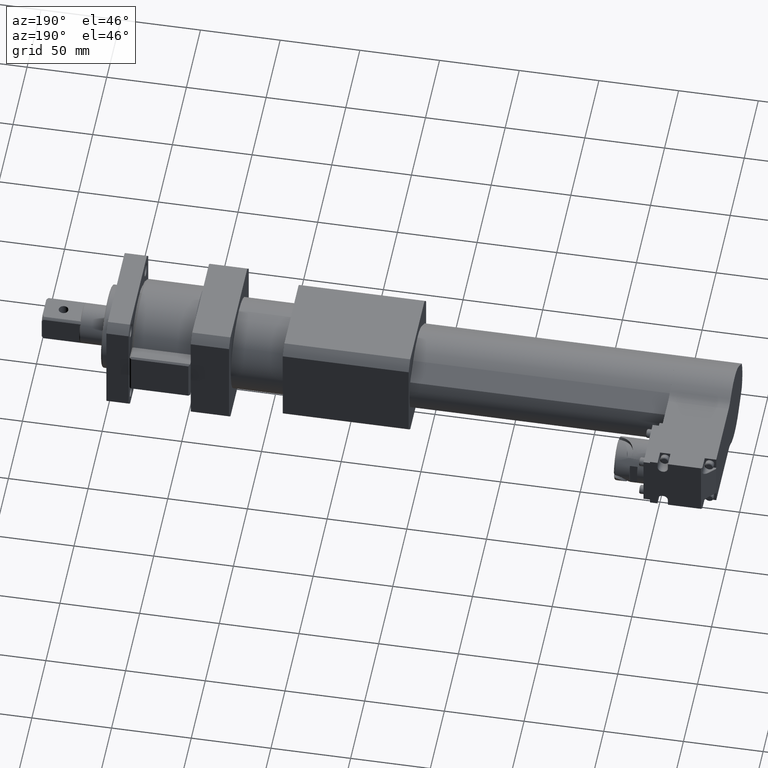
[diagram: clean part render]
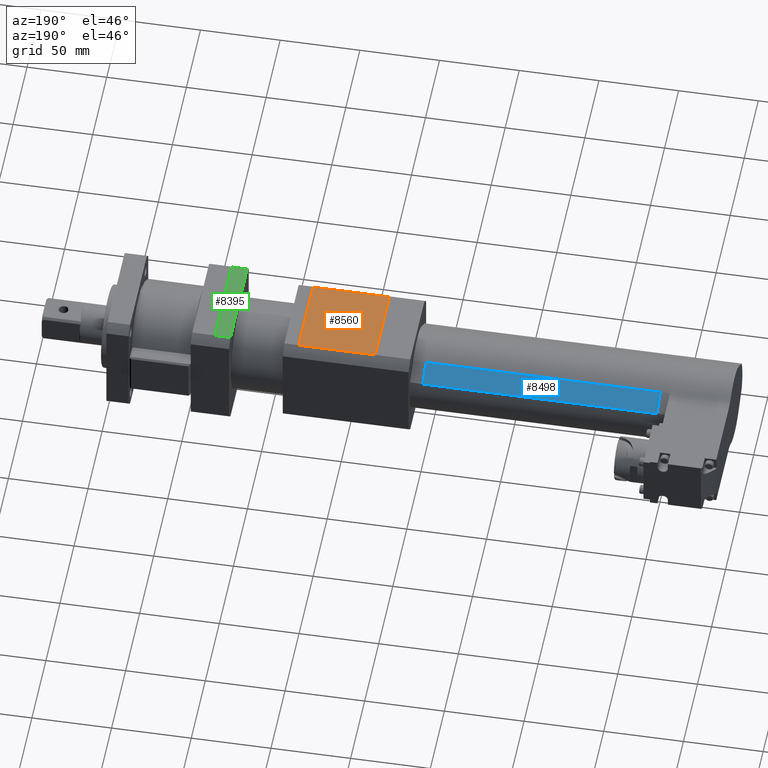
[diagram: same view with three faces highlighted in distinct colors, each labeled with its STEP entity id]
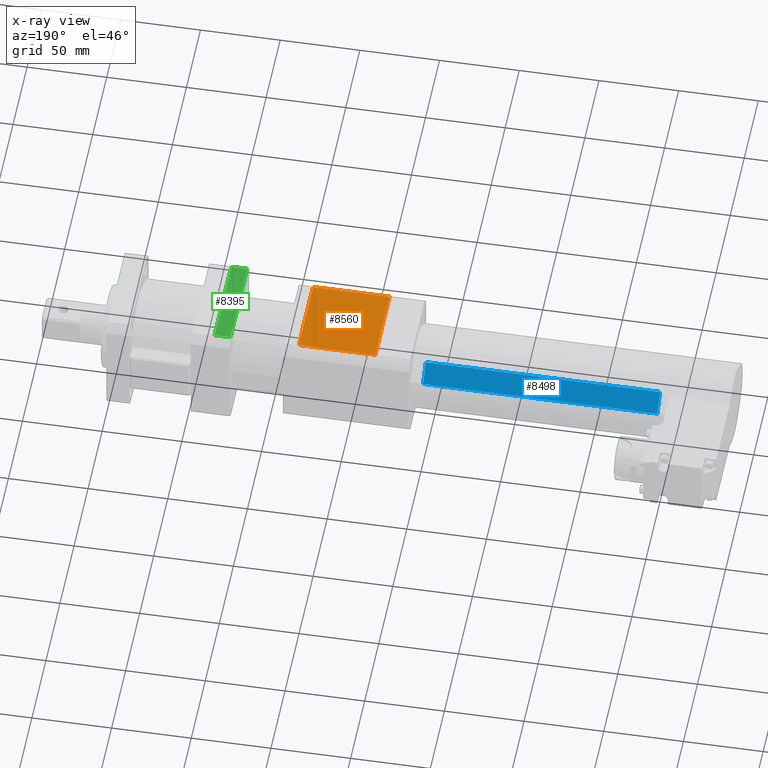
[diagram: x-ray of the same camera — body ghosted, the three highlighted faces saturated]
A machine part, auxiliary view with three faces highlighted in distinct colors.
The next image is the same camera in x-ray (body ghosted, the three faces saturated) — at least one of them is partly hidden behind the body in this view.
Their STEP definitions:

[orange] entity #8560 — the highlighted planar face has unit normal (0, -0, -1).
#1023 = LINE ( 'NONE', #5365, #2419 ) ;
#1092 = DIRECTION ( 'NONE',  ( 1.000000000000000000, -0.0000000000000000000, -0.0000000000000000000 ) ) ;
#1235 = VERTEX_POINT ( 'NONE', #8900 ) ;
#1376 = CARTESIAN_POINT ( 'NONE',  ( -119.0000000000000000, -25.27844931952907000, 31.00000000000000400 ) ) ;
#1604 = VECTOR ( 'NONE', #7276, 1000.000000000000000 ) ;
#1847 = DIRECTION ( 'NONE',  ( 0.0000000000000000000, 1.000000000000000000, -1.372492002218373300E-016 ) ) ;
#1850 = VERTEX_POINT ( 'NONE', #1376 ) ;
#2088 = EDGE_CURVE ( 'NONE', #7999, #6685, #1023, .T. ) ;
#2383 = CARTESIAN_POINT ( 'NONE',  ( -166.9999999999999700, -25.27844931952907000, 31.00000000000000400 ) ) ;
#2419 = VECTOR ( 'NONE', #5110, 1000.000000000000000 ) ;
#2999 = CARTESIAN_POINT ( 'NONE',  ( -166.9999999999999700, 25.27844931952908100, 30.99999999999999600 ) ) ;
#3671 = LINE ( 'NONE', #8167, #7190 ) ;
#3893 = CARTESIAN_POINT ( 'NONE',  ( -166.9999999999999700, -25.27844931952907000, 31.00000000000000400 ) ) ;
#3958 = DIRECTION ( 'NONE',  ( 0.0000000000000000000, 1.000000000000000000, -1.372492002218373300E-016 ) ) ;
#4108 = LINE ( 'NONE', #5944, #6206 ) ;
#4498 = ORIENTED_EDGE ( 'NONE', *, *, #8910, .T. ) ;
#4776 = CARTESIAN_POINT ( 'NONE',  ( -166.9999999999999700, -25.27844931952907000, 31.00000000000000400 ) ) ;
#5110 = DIRECTION ( 'NONE',  ( 0.0000000000000000000, 1.000000000000000000, -1.372492002218373300E-016 ) ) ;
#5262 = EDGE_CURVE ( 'NONE', #6685, #1235, #4108, .T. ) ;
#5365 = CARTESIAN_POINT ( 'NONE',  ( -166.9999999999999700, -25.27844931952907000, 31.00000000000000400 ) ) ;
#5944 = CARTESIAN_POINT ( 'NONE',  ( -166.9999999999999700, 25.27844931952908100, 30.99999999999999600 ) ) ;
#6033 = DIRECTION ( 'NONE',  ( 0.0000000000000000000, -1.372492002218373300E-016, -1.000000000000000000 ) ) ;
#6206 = VECTOR ( 'NONE', #1092, 1000.000000000000000 ) ;
#6662 = EDGE_LOOP ( 'NONE', ( #6938, #8895, #8450, #4498 ) ) ;
#6685 = VERTEX_POINT ( 'NONE', #2999 ) ;
#6700 = PLANE ( 'NONE',  #8973 ) ;
#6938 = ORIENTED_EDGE ( 'NONE', *, *, #6981, .T. ) ;
#6981 = EDGE_CURVE ( 'NONE', #1850, #1235, #3671, .T. ) ;
#7169 = LINE ( 'NONE', #2383, #1604 ) ;
#7190 = VECTOR ( 'NONE', #3958, 1000.000000000000000 ) ;
#7276 = DIRECTION ( 'NONE',  ( 1.000000000000000000, -0.0000000000000000000, -0.0000000000000000000 ) ) ;
#7999 = VERTEX_POINT ( 'NONE', #4776 ) ;
#8167 = CARTESIAN_POINT ( 'NONE',  ( -119.0000000000000000, -25.27844931952907000, 31.00000000000000400 ) ) ;
#8450 = ORIENTED_EDGE ( 'NONE', *, *, #2088, .F. ) ;
#8560 = ADVANCED_FACE ( 'NONE', ( #8712 ), #6700, .F. ) ;
#8712 = FACE_OUTER_BOUND ( 'NONE', #6662, .T. ) ;
#8895 = ORIENTED_EDGE ( 'NONE', *, *, #5262, .F. ) ;
#8900 = CARTESIAN_POINT ( 'NONE',  ( -119.0000000000000000, 25.27844931952908100, 30.99999999999999600 ) ) ;
#8910 = EDGE_CURVE ( 'NONE', #7999, #1850, #7169, .T. ) ;
#8973 = AXIS2_PLACEMENT_3D ( 'NONE', #3893, #6033, #1847 ) ;

[blue] entity #8498 — the highlighted planar face has unit normal (0, -0.6157, -0.788).
#2 = DIRECTION ( 'NONE',  ( 1.000000000000000000, -0.0000000000000000000, -0.0000000000000000000 ) ) ;
#692 = VECTOR ( 'NONE', #6919, 1000.000000000000000 ) ;
#912 = VERTEX_POINT ( 'NONE', #4414 ) ;
#991 = LINE ( 'NONE', #4379, #2591 ) ;
#1475 = VERTEX_POINT ( 'NONE', #5477 ) ;
#1716 = FACE_OUTER_BOUND ( 'NONE', #2441, .T. ) ;
#1811 = EDGE_CURVE ( 'NONE', #912, #4842, #2518, .T. ) ;
#1843 = LINE ( 'NONE', #6717, #5341 ) ;
#2441 = EDGE_LOOP ( 'NONE', ( #3048, #8953, #8326, #6641 ) ) ;
#2518 = LINE ( 'NONE', #3157, #692 ) ;
#2563 = VECTOR ( 'NONE', #2, 1000.000000000000000 ) ;
#2591 = VECTOR ( 'NONE', #5098, 1000.000000000000100 ) ;
#2715 = CARTESIAN_POINT ( 'NONE',  ( -196.9999999999999700, 25.76553998420790100, 10.96070022043227400 ) ) ;
#3048 = ORIENTED_EDGE ( 'NONE', *, *, #6606, .T. ) ;
#3157 = CARTESIAN_POINT ( 'NONE',  ( -344.0000000000000000, 25.76553998420790100, 10.96070022043227400 ) ) ;
#3438 = CARTESIAN_POINT ( 'NONE',  ( -344.0000000000000000, 15.08370614547878800, 19.30626346336455200 ) ) ;
#3843 = CARTESIAN_POINT ( 'NONE',  ( -344.0000000000000000, 15.08370614547878800, 19.30626346336455200 ) ) ;
#4379 = CARTESIAN_POINT ( 'NONE',  ( -196.9999999999999700, 15.08370614547878800, 19.30626346336455200 ) ) ;
#4414 = CARTESIAN_POINT ( 'NONE',  ( -344.0000000000000000, 25.76553998420790100, 10.96070022043227400 ) ) ;
#4422 = LINE ( 'NONE', #3438, #2563 ) ;
#4435 = VERTEX_POINT ( 'NONE', #6388 ) ;
#4552 = DIRECTION ( 'NONE',  ( 0.0000000000000000000, 0.7880107536067166900, -0.6156614753256651800 ) ) ;
#4842 = VERTEX_POINT ( 'NONE', #2715 ) ;
#5098 = DIRECTION ( 'NONE',  ( 0.0000000000000000000, 0.7880107536067166900, -0.6156614753256650600 ) ) ;
#5341 = VECTOR ( 'NONE', #7425, 1000.000000000000100 ) ;
#5377 = EDGE_CURVE ( 'NONE', #1475, #912, #1843, .T. ) ;
#5477 = CARTESIAN_POINT ( 'NONE',  ( -344.0000000000000000, 15.08370614547878800, 19.30626346336455200 ) ) ;
#6388 = CARTESIAN_POINT ( 'NONE',  ( -196.9999999999999700, 15.08370614547878800, 19.30626346336455200 ) ) ;
#6606 = EDGE_CURVE ( 'NONE', #4435, #4842, #991, .T. ) ;
#6626 = AXIS2_PLACEMENT_3D ( 'NONE', #3843, #8760, #4552 ) ;
#6640 = PLANE ( 'NONE',  #6626 ) ;
#6641 = ORIENTED_EDGE ( 'NONE', *, *, #9013, .T. ) ;
#6717 = CARTESIAN_POINT ( 'NONE',  ( -344.0000000000000000, 15.08370614547878800, 19.30626346336455200 ) ) ;
#6919 = DIRECTION ( 'NONE',  ( 1.000000000000000000, -0.0000000000000000000, -0.0000000000000000000 ) ) ;
#7425 = DIRECTION ( 'NONE',  ( 0.0000000000000000000, 0.7880107536067166900, -0.6156614753256650600 ) ) ;
#8326 = ORIENTED_EDGE ( 'NONE', *, *, #5377, .F. ) ;
#8498 = ADVANCED_FACE ( 'NONE', ( #1716 ), #6640, .F. ) ;
#8760 = DIRECTION ( 'NONE',  ( 0.0000000000000000000, -0.6156614753256651800, -0.7880107536067166900 ) ) ;
#8953 = ORIENTED_EDGE ( 'NONE', *, *, #1811, .F. ) ;
#9013 = EDGE_CURVE ( 'NONE', #1475, #4435, #4422, .T. ) ;

[green] entity #8395 — the highlighted planar face has unit normal (0, 0, -1).
#31 = VERTEX_POINT ( 'NONE', #234 ) ;
#234 = CARTESIAN_POINT ( 'NONE',  ( -67.00000000000000000, -29.84962311319860400, 34.99999999999999300 ) ) ;
#311 = DIRECTION ( 'NONE',  ( 0.0000000000000000000, 1.162308461583064400E-016, -1.000000000000000000 ) ) ;
#807 = VECTOR ( 'NONE', #4015, 1000.000000000000000 ) ;
#860 = EDGE_CURVE ( 'NONE', #8340, #941, #6144, .T. ) ;
#941 = VERTEX_POINT ( 'NONE', #7617 ) ;
#1064 = EDGE_CURVE ( 'NONE', #8340, #31, #7137, .T. ) ;
#1120 = CARTESIAN_POINT ( 'NONE',  ( -77.00000000000000000, -29.84962311319860400, 34.99999999999999300 ) ) ;
#1617 = CARTESIAN_POINT ( 'NONE',  ( -77.00000000000000000, -29.84962311319860400, 34.99999999999999300 ) ) ;
#2292 = EDGE_LOOP ( 'NONE', ( #4503, #5478, #7989, #8535 ) ) ;
#2385 = VECTOR ( 'NONE', #4821, 1000.000000000000000 ) ;
#2782 = FACE_OUTER_BOUND ( 'NONE', #2292, .T. ) ;
#3385 = VECTOR ( 'NONE', #8179, 1000.000000000000000 ) ;
#3757 = PLANE ( 'NONE',  #3793 ) ;
#3793 = AXIS2_PLACEMENT_3D ( 'NONE', #8678, #311, #5185 ) ;
#3802 = CARTESIAN_POINT ( 'NONE',  ( -77.00000000000000000, 29.84962311319858900, 35.00000000000000000 ) ) ;
#4015 = DIRECTION ( 'NONE',  ( 0.0000000000000000000, 1.000000000000000000, 1.162308461583064400E-016 ) ) ;
#4092 = CARTESIAN_POINT ( 'NONE',  ( -67.00000000000000000, -29.84962311319860400, 34.99999999999999300 ) ) ;
#4335 = CARTESIAN_POINT ( 'NONE',  ( -67.00000000000000000, 29.84962311319858900, 35.00000000000000000 ) ) ;
#4503 = ORIENTED_EDGE ( 'NONE', *, *, #5544, .T. ) ;
#4821 = DIRECTION ( 'NONE',  ( 0.0000000000000000000, 1.000000000000000000, 1.162308461583064400E-016 ) ) ;
#5037 = VERTEX_POINT ( 'NONE', #4335 ) ;
#5185 = DIRECTION ( 'NONE',  ( 0.0000000000000000000, 1.000000000000000000, 1.162308461583064400E-016 ) ) ;
#5478 = ORIENTED_EDGE ( 'NONE', *, *, #6069, .F. ) ;
#5544 = EDGE_CURVE ( 'NONE', #31, #5037, #7970, .T. ) ;
#6069 = EDGE_CURVE ( 'NONE', #941, #5037, #7093, .T. ) ;
#6144 = LINE ( 'NONE', #1120, #807 ) ;
#7093 = LINE ( 'NONE', #3802, #8957 ) ;
#7137 = LINE ( 'NONE', #8173, #3385 ) ;
#7617 = CARTESIAN_POINT ( 'NONE',  ( -77.00000000000000000, 29.84962311319858900, 35.00000000000000000 ) ) ;
#7970 = LINE ( 'NONE', #4092, #2385 ) ;
#7989 = ORIENTED_EDGE ( 'NONE', *, *, #860, .F. ) ;
#8021 = DIRECTION ( 'NONE',  ( 1.000000000000000000, -0.0000000000000000000, -0.0000000000000000000 ) ) ;
#8173 = CARTESIAN_POINT ( 'NONE',  ( -77.00000000000000000, -29.84962311319860400, 34.99999999999999300 ) ) ;
#8179 = DIRECTION ( 'NONE',  ( 1.000000000000000000, -0.0000000000000000000, -0.0000000000000000000 ) ) ;
#8340 = VERTEX_POINT ( 'NONE', #1617 ) ;
#8395 = ADVANCED_FACE ( 'NONE', ( #2782 ), #3757, .F. ) ;
#8535 = ORIENTED_EDGE ( 'NONE', *, *, #1064, .T. ) ;
#8678 = CARTESIAN_POINT ( 'NONE',  ( -77.00000000000000000, -29.84962311319860400, 34.99999999999999300 ) ) ;
#8957 = VECTOR ( 'NONE', #8021, 1000.000000000000000 ) ;